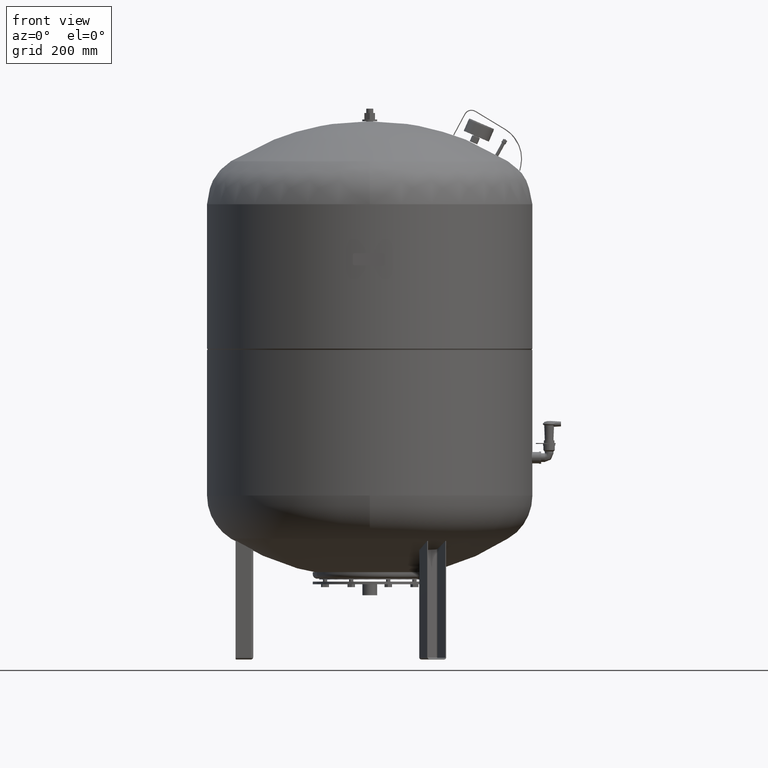
[diagram: clean part render]
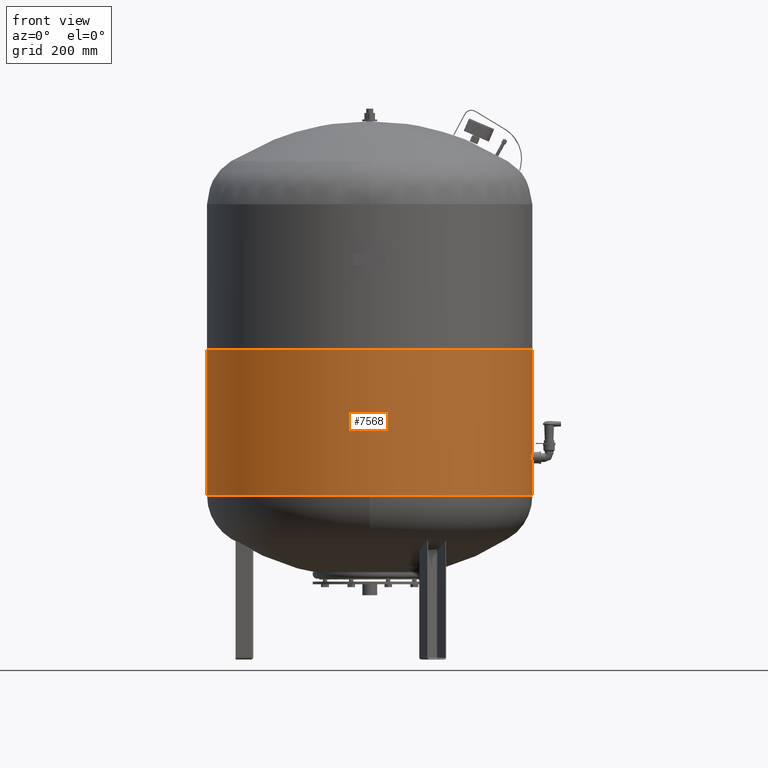
[diagram: same view with one face highlighted and labeled with its STEP entity id]
A machine part, front view. The second image highlights one B-rep face of the part: STEP entity #7568.
In plain terms, the highlighted cylindrical surface (partial cylindrical patch) has radius 370 mm, axis along (0, 0, 1).
Its self-contained STEP definition (entity closure, byte-faithful):
#7527=CARTESIAN_POINT('',(-1.668796E-014,0.0,375.500000000000000));
#7528=DIRECTION('',(0.0,0.0,1.0));
#7529=DIRECTION('',(1.0,0.0,0.0));
#7530=AXIS2_PLACEMENT_3D('',#7527,#7528,#7529);
#7531=CYLINDRICAL_SURFACE('',#7530,370.0);
#7532=CARTESIAN_POINT('',(369.999999999999770,0.0,704.0));
#7533=VERTEX_POINT('',#7532);
#7534=CARTESIAN_POINT('',(370.0,0.0,373.0));
#7535=VERTEX_POINT('',#7534);
#7536=CARTESIAN_POINT('',(369.999999999999770,0.0,704.0));
#7537=DIRECTION('',(0.0,0.0,-1.0));
#7538=VECTOR('',#7537,331.0);
#7539=LINE('',#7536,#7538);
#7540=EDGE_CURVE('',#7533,#7535,#7539,.T.);
#7541=ORIENTED_EDGE('',*,*,#7540,.F.);
#7542=CARTESIAN_POINT('',(-370.0,-4.531044E-014,704.0));
#7543=VERTEX_POINT('',#7542);
#7544=CARTESIAN_POINT('',(0.0,0.0,704.0));
#7545=DIRECTION('',(0.0,0.0,1.0));
#7546=DIRECTION('',(1.0,0.0,0.0));
#7547=AXIS2_PLACEMENT_3D('',#7544,#7545,#7546);
#7548=CIRCLE('',#7547,369.999999999999770);
#7549=EDGE_CURVE('',#7543,#7533,#7548,.T.);
#7550=ORIENTED_EDGE('',*,*,#7549,.F.);
#7551=CARTESIAN_POINT('',(-370.0,-4.531044E-014,373.0));
#7552=VERTEX_POINT('',#7551);
#7553=CARTESIAN_POINT('',(-370.0,-4.531044E-014,704.0));
#7554=DIRECTION('',(0.0,0.0,-1.0));
#7555=VECTOR('',#7554,331.0);
#7556=LINE('',#7553,#7555);
#7557=EDGE_CURVE('',#7543,#7552,#7556,.T.);
#7558=ORIENTED_EDGE('',*,*,#7557,.T.);
#7559=CARTESIAN_POINT('',(-1.668796E-014,0.0,373.0));
#7560=DIRECTION('',(0.0,0.0,-1.0));
#7561=DIRECTION('',(1.0,0.0,0.0));
#7562=AXIS2_PLACEMENT_3D('',#7559,#7560,#7561);
#7563=CIRCLE('',#7562,370.0);
#7564=EDGE_CURVE('',#7535,#7552,#7563,.T.);
#7565=ORIENTED_EDGE('',*,*,#7564,.F.);
#7566=EDGE_LOOP('',(#7541,#7550,#7558,#7565));
#7567=FACE_OUTER_BOUND('',#7566,.T.);
#7568=ADVANCED_FACE('',(#7567),#7531,.T.);